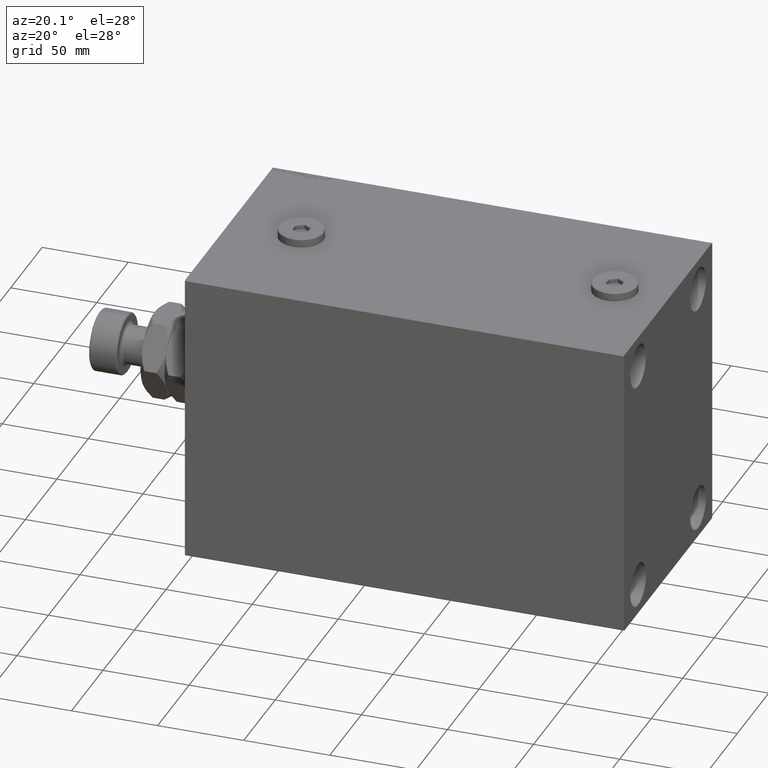
[diagram: clean part render]
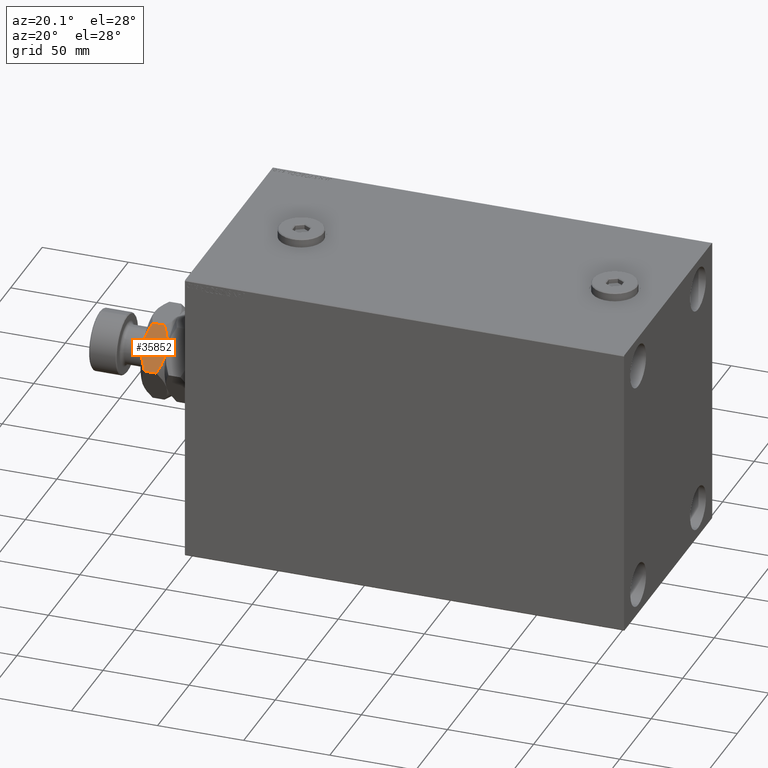
[diagram: same view with one face highlighted and labeled with its STEP entity id]
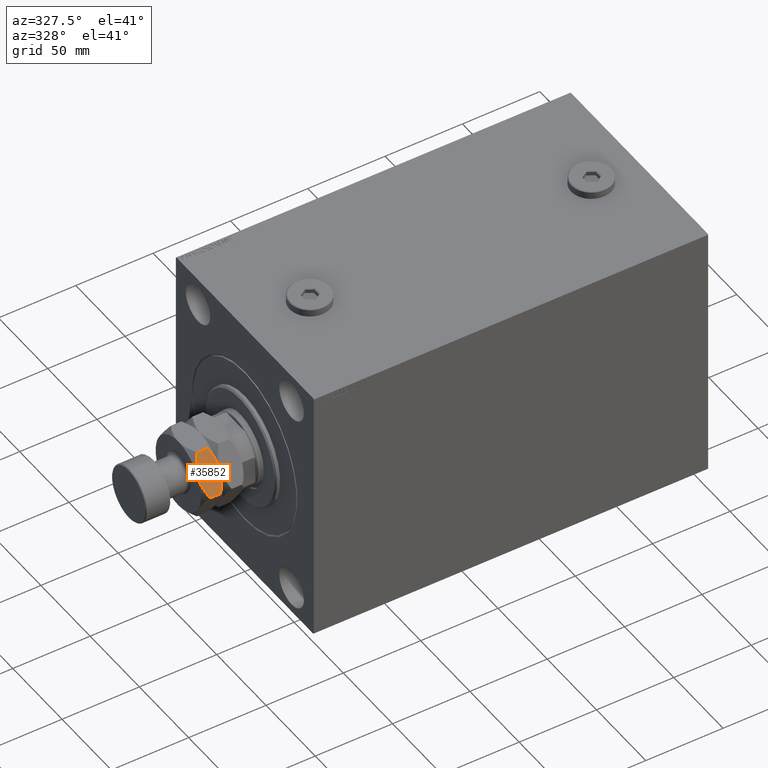
[diagram: same view with one face highlighted and labeled with its STEP entity id]
A machine part, auxiliary view. The second image highlights one B-rep face of the part: STEP entity #35852.
A second angle (auxiliary view) of the same face is appended — the face is thin or edge-on in the first view.
In plain terms, the highlighted planar face has unit normal (0, 0.866, -0.5).
Its self-contained STEP definition (entity closure, byte-faithful):
#251 = EDGE_CURVE ( 'NONE', #28268, #26834, #18641, .T. ) ;
#507 = EDGE_CURVE ( 'NONE', #22409, #31021, #5965, .T. ) ;
#532 = CARTESIAN_POINT ( 'NONE',  ( 10.99639501427890309, -20.20934076111341327, 28.00000000000000355 ) ) ;
#1123 = EDGE_CURVE ( 'NONE', #44596, #22839, #45265, .T. ) ;
#2787 = CARTESIAN_POINT ( 'NONE',  ( 13.52432111410264426, -18.74984194688869721, 14.11109877778790711 ) ) ;
#3868 = CARTESIAN_POINT ( 'NONE',  ( 3.647547518302292957, -24.45219984114902090, 26.36778857186889979 ) ) ;
#4100 = CARTESIAN_POINT ( 'NONE',  ( 7.485235315951460855, -22.23650975811052533, 27.56483616389683888 ) ) ;
#4818 = EDGE_CURVE ( 'NONE', #31021, #44596, #7577, .T. ) ;
#5646 = CARTESIAN_POINT ( 'NONE',  ( 19.35245248169770349, -15.38496873293516742, 15.63221142813110376 ) ) ;
#5965 = LINE ( 'NONE', #20960, #36318 ) ;
#6361 = CARTESIAN_POINT ( 'NONE',  ( 12.00360498572110401, -19.62782781297077861, 14.00000000000000533 ) ) ;
#6823 = CARTESIAN_POINT ( 'NONE',  ( 1.709722276742338234E-15, -26.55811238272278985, 17.55811238272278274 ) ) ;
#6973 = CARTESIAN_POINT ( 'NONE',  ( -1.934533906329143444E-16, -26.55811238272279340, 24.44188761727721726 ) ) ;
#7037 = CARTESIAN_POINT ( 'NONE',  ( 1.814388699413966410, -25.51057457870152589, 16.55607787929225339 ) ) ;
#7121 = CARTESIAN_POINT ( 'NONE',  ( 11.50000000000000533, -19.91858428704207995, 28.00000000000000000 ) ) ;
#7290 = FACE_OUTER_BOUND ( 'NONE', #25835, .T. ) ;
#7577 = B_SPLINE_CURVE_WITH_KNOTS ( 'NONE', 3,
 ( #31827, #38263, #5646, #35170, #28255, #24444, #2787, #39206, #6361, #31356 ),
 .UNSPECIFIED., .F., .F.,
 ( 4, 2, 2, 2, 4 ),
 ( 2.544306848934472580E-07, 0.006882727124394008057, 0.01032396347124856124, 0.01204458164467583740, 0.01376519981810311356 ),
 .UNSPECIFIED. ) ;
#9089 = CARTESIAN_POINT ( 'NONE',  ( 11.50000000000000533, -19.91858428704207995, 28.00000000000000000 ) ) ;
#9789 = DIRECTION ( 'NONE',  ( -0.000000000000000000, -0.000000000000000000, -1.000000000000000000 ) ) ;
#12902 = AXIS2_PLACEMENT_3D ( 'NONE', #33457, #36789, #36322 ) ;
#14502 = CARTESIAN_POINT ( 'NONE',  ( 22.09936078620807010, -13.79904048388689297, 24.96187190980275616 ) ) ;
#15005 = VECTOR ( 'NONE', #18911, 1000.000000000000000 ) ;
#16108 = CARTESIAN_POINT ( 'NONE',  ( -1.934533906329143444E-16, -26.55811238272279340, 24.44188761727721726 ) ) ;
#17748 = CARTESIAN_POINT ( 'NONE',  ( 9.499688913091178577, -21.07346443153189242, 14.00000000000001243 ) ) ;
#17833 = CARTESIAN_POINT ( 'NONE',  ( 21.18561130058603581, -14.32659399538265355, 25.44392212070775727 ) ) ;
#18067 = CARTESIAN_POINT ( 'NONE',  ( 13.50031108690882675, -18.76370414255229591, 28.00000000000000000 ) ) ;
#18169 = ORIENTED_EDGE ( 'NONE', *, *, #45437, .F. ) ;
#18221 = CARTESIAN_POINT ( 'NONE',  ( 1.709722276742338234E-15, -26.55811238272278985, 17.55811238272278274 ) ) ;
#18398 = CARTESIAN_POINT ( 'NONE',  ( 10.48996581949100104, -20.50172779304968884, 27.97785245724466563 ) ) ;
#18641 = B_SPLINE_CURVE_WITH_KNOTS ( 'NONE', 3,
 ( #6973, #36940, #3868, #21492, #4100, #28613, #43151, #18398, #532, #32908 ),
 .UNSPECIFIED., .F., .F.,
 ( 4, 2, 2, 2, 4 ),
 ( 2.544306848906980008E-07, 0.006882727124393995914, 0.01032396347124855084, 0.01204458164467583220, 0.01376519981810311356 ),
 .UNSPECIFIED. ) ;
#18911 = DIRECTION ( 'NONE',  ( -0.000000000000000000, -0.000000000000000000, -1.000000000000000000 ) ) ;
#20150 = B_SPLINE_CURVE_WITH_KNOTS ( 'NONE', 3,
 ( #7121, #18067, #32583, #47111, #39020, #17833, #14502, #21638 ),
 .UNSPECIFIED., .F., .F.,
 ( 4, 2, 2, 4 ),
 ( 0.01376519981810311356, 0.02059946815584629345, 0.02401660232471788253, 0.02743373649358946814 ),
 .UNSPECIFIED. ) ;
#20960 = CARTESIAN_POINT ( 'NONE',  ( 23.00000000000000000, -13.27905619136138959, 28.00000000000000000 ) ) ;
#21077 = CARTESIAN_POINT ( 'NONE',  ( 0.9006392137919316809, -26.03812809019729357, 17.03812809019724028 ) ) ;
#21492 = CARTESIAN_POINT ( 'NONE',  ( 6.513252209336793719, -22.79768446636226642, 27.31372419864524659 ) ) ;
#21638 = CARTESIAN_POINT ( 'NONE',  ( 23.00000000000000000, -13.27905619136138959, 24.44188761727722792 ) ) ;
#21682 = ORIENTED_EDGE ( 'NONE', *, *, #4818, .F. ) ;
#21803 = PLANE ( 'NONE',  #12902 ) ;
#22409 = VERTEX_POINT ( 'NONE', #41902 ) ;
#22839 = VERTEX_POINT ( 'NONE', #6823 ) ;
#23595 = ORIENTED_EDGE ( 'NONE', *, *, #251, .F. ) ;
#24019 = EDGE_CURVE ( 'NONE', #28268, #22839, #33191, .T. ) ;
#24444 = CARTESIAN_POINT ( 'NONE',  ( 14.02580821503727471, -18.46030823416895217, 14.17725660431697676 ) ) ;
#24647 = CARTESIAN_POINT ( 'NONE',  ( 11.49999999999998934, -19.91858428704209061, 14.00000000000000000 ) ) ;
#25835 = EDGE_LOOP ( 'NONE', ( #21682, #35248, #18169, #23595, #33872, #43632 ) ) ;
#26834 = VERTEX_POINT ( 'NONE', #9089 ) ;
#28255 = CARTESIAN_POINT ( 'NONE',  ( 15.51476468404853826, -17.60065881597365944, 14.43516383610315756 ) ) ;
#28268 = VERTEX_POINT ( 'NONE', #16108 ) ;
#28613 = CARTESIAN_POINT ( 'NONE',  ( 8.974191784962727070, -21.37686033991523615, 27.82274339568303390 ) ) ;
#28685 = CARTESIAN_POINT ( 'NONE',  ( 4.624867511207329862, -23.88794388016088632, 15.30784375106604855 ) ) ;
#28920 = CARTESIAN_POINT ( 'NONE',  ( 7.533391302902209041, -22.20870688608141919, 14.35317254909358908 ) ) ;
#29847 = CARTESIAN_POINT ( 'NONE',  ( 3.419413258936889517E-15, -26.55811238272278985, 28.00000000000000000 ) ) ;
#31021 = VERTEX_POINT ( 'NONE', #38449 ) ;
#31356 = CARTESIAN_POINT ( 'NONE',  ( 11.49999999999998934, -19.91858428704209061, 14.00000000000000000 ) ) ;
#31827 = CARTESIAN_POINT ( 'NONE',  ( 23.00000000000000000, -13.27905619136138782, 17.55811238272277564 ) ) ;
#32583 = CARTESIAN_POINT ( 'NONE',  ( 15.46660869709778119, -17.62846168800276558, 27.64682745090641447 ) ) ;
#32908 = CARTESIAN_POINT ( 'NONE',  ( 11.50000000000000533, -19.91858428704207995, 28.00000000000000000 ) ) ;
#33191 = LINE ( 'NONE', #29847, #15005 ) ;
#33457 = CARTESIAN_POINT ( 'NONE',  ( 3.419413258936889517E-15, -26.55811238272278985, 28.00000000000000000 ) ) ;
#33872 = ORIENTED_EDGE ( 'NONE', *, *, #24019, .T. ) ;
#35170 = CARTESIAN_POINT ( 'NONE',  ( 16.48674779066320184, -17.03948410772191124, 14.68627580135475164 ) ) ;
#35248 = ORIENTED_EDGE ( 'NONE', *, *, #507, .F. ) ;
#35852 = ADVANCED_FACE ( 'NONE', ( #7290 ), #21803, .F. ) ;
#36318 = VECTOR ( 'NONE', #9789, 1000.000000000000000 ) ;
#36322 = DIRECTION ( 'NONE',  ( -0.8660254037844383745, -0.5000000000000003331, 0.000000000000000000 ) ) ;
#36789 = DIRECTION ( 'NONE',  ( -0.5000000000000004441, 0.8660254037844384856, 0.000000000000000000 ) ) ;
#36940 = CARTESIAN_POINT ( 'NONE',  ( 1.803367014497427645, -25.51693795145501298, 25.48306204854499768 ) ) ;
#38263 = CARTESIAN_POINT ( 'NONE',  ( 21.19663298550257480, -14.32023062262916824, 16.51693795145499877 ) ) ;
#38449 = CARTESIAN_POINT ( 'NONE',  ( 23.00000000000000000, -13.27905619136138782, 17.55811238272277564 ) ) ;
#39020 = CARTESIAN_POINT ( 'NONE',  ( 19.32386580747566285, -15.40147325699249770, 26.30893151126140594 ) ) ;
#39168 = CARTESIAN_POINT ( 'NONE',  ( 3.676134192524337152, -24.43569531709167819, 15.69106848873859761 ) ) ;
#39206 = CARTESIAN_POINT ( 'NONE',  ( 12.51003418050900073, -19.33544078103450303, 14.02214754275534681 ) ) ;
#41902 = CARTESIAN_POINT ( 'NONE',  ( 23.00000000000000000, -13.27905619136138959, 24.44188761727722792 ) ) ;
#43092 = CARTESIAN_POINT ( 'NONE',  ( 11.49999999999998934, -19.91858428704209061, 14.00000000000000000 ) ) ;
#43151 = CARTESIAN_POINT ( 'NONE',  ( 9.475678885897357517, -21.08732662719549467, 27.88890122221209467 ) ) ;
#43632 = ORIENTED_EDGE ( 'NONE', *, *, #1123, .F. ) ;
#44596 = VERTEX_POINT ( 'NONE', #43092 ) ;
#45265 = B_SPLINE_CURVE_WITH_KNOTS ( 'NONE', 3,
 ( #24647, #17748, #28920, #28685, #39168, #7037, #21077, #18221 ),
 .UNSPECIFIED., .F., .F.,
 ( 4, 2, 2, 4 ),
 ( 0.01376519981810311356, 0.02059946815584628999, 0.02401660232471788253, 0.02743373649358947161 ),
 .UNSPECIFIED. ) ;
#45437 = EDGE_CURVE ( 'NONE', #26834, #22409, #20150, .T. ) ;
#47111 = CARTESIAN_POINT ( 'NONE',  ( 18.37513248879265859, -15.94922469392329845, 26.69215624893394789 ) ) ;